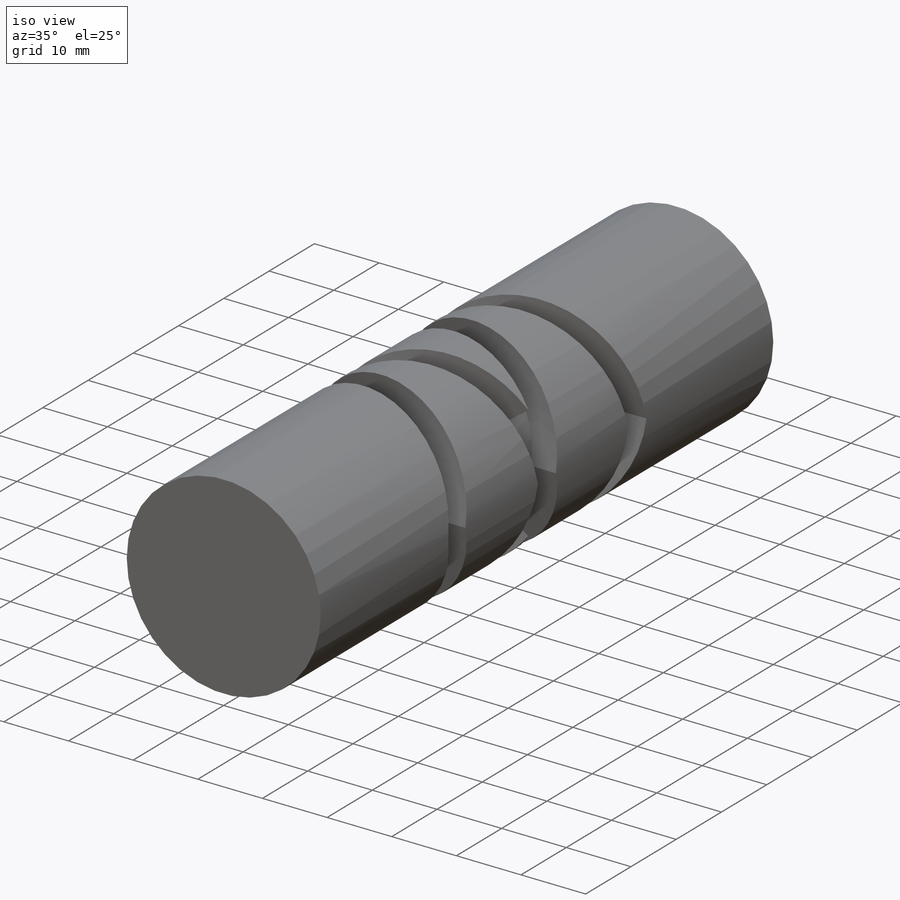
[diagram: iso view]
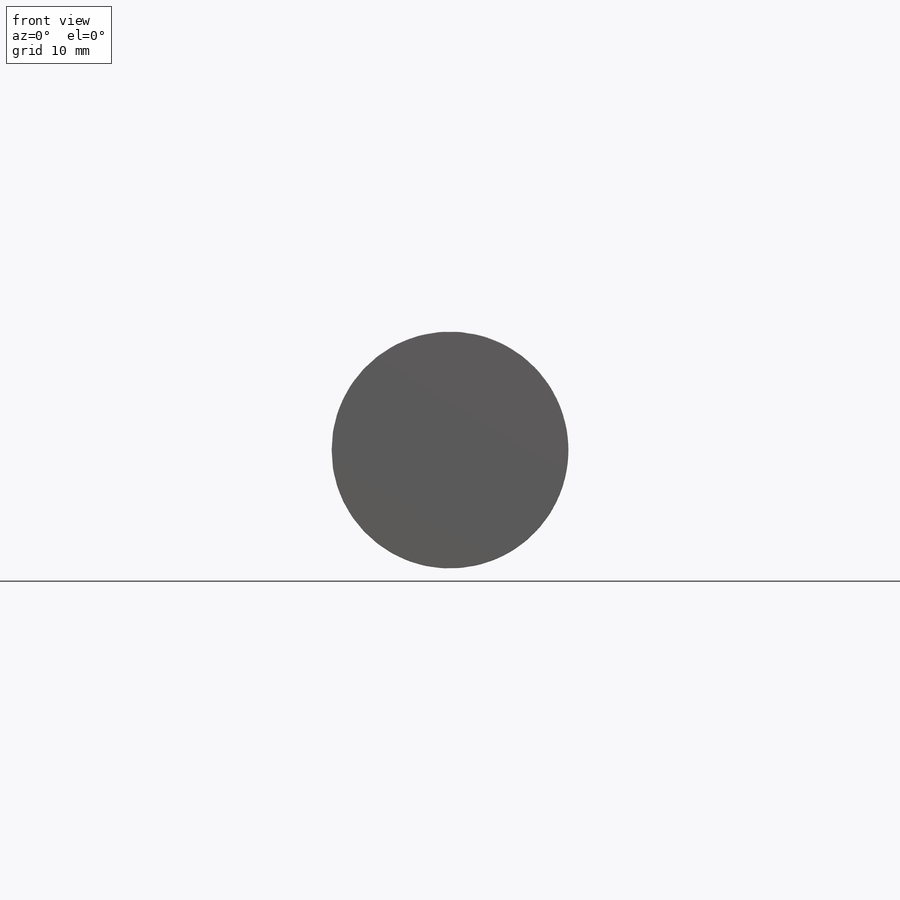
[diagram: front view]
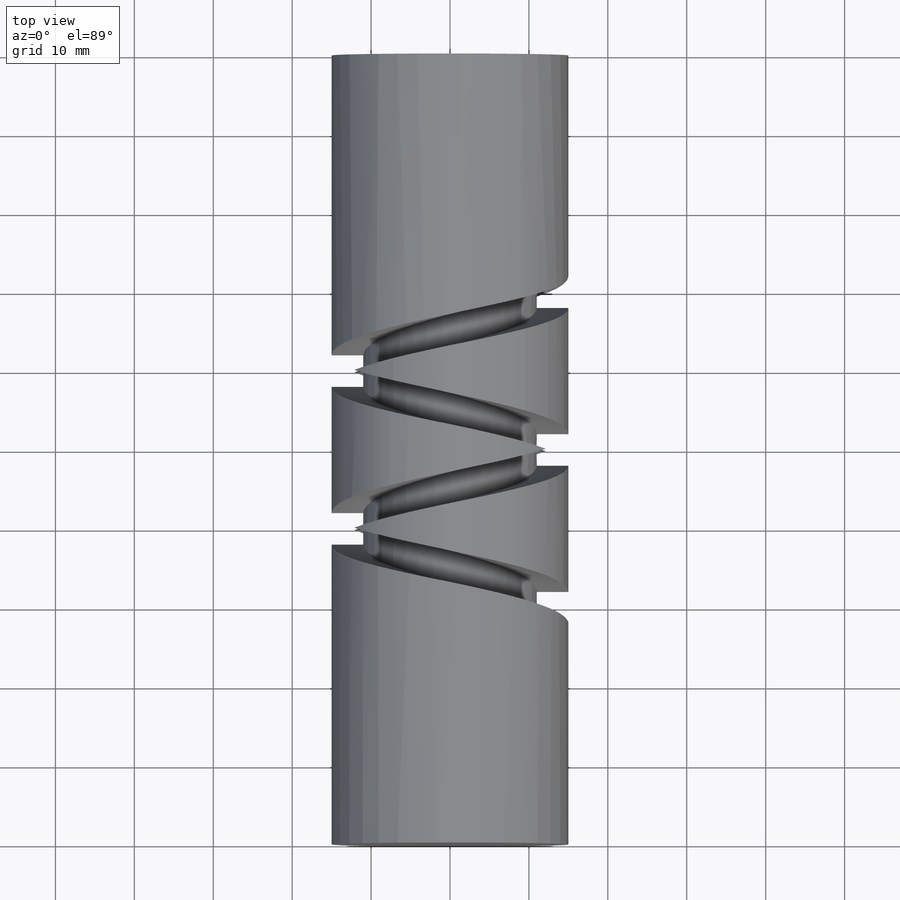
[diagram: top view]
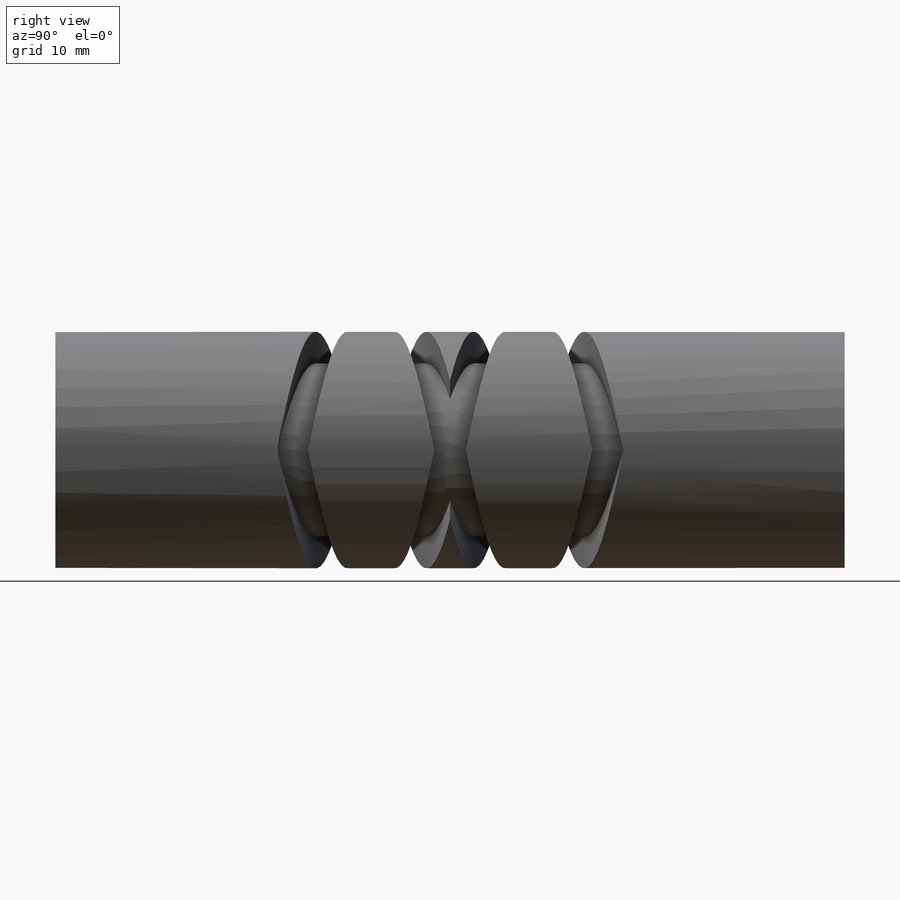
[diagram: right view]
SOLIDWORKS PART (.sldprt)
format: sldprt  version: not decoded by parser v0  size: 312,832 bytes
history: native  units: mm
features: plane x6, sketch x3, material x1, extrude x1, helix x1, sweep x1, mirror x1, fillet x1 (+9 scaffold rows collapsed)
feature tree (24):
  scaffold x9  (default folders/planes/origin — collapsed)
  material  "Material <nicht festgelegt>"
  plane  "Ebene vorne"
  plane  "Ebene oben"
  plane  "Ebene rechts"
  sketch  "Skizze1"  dims[D1=30.0mm]
  extrude  "Aufsatz-Linear austragen1"  Depth=100mm
  plane  "Ebene1"  Offset=0mm
  plane  "Ebene2"  Offset=0mm
  plane  "Ebene3"  Offset=30mm
  sketch  "Skizze4"  dims[D1=30.0mm]
  helix  "Spirale/Helix2"  Pitch=40mm
  sketch  "Skizze6"  dims[c1.D1=4.0mm c1.D2=4.0mm c2.D1=28.0mm c2.D2=4.0mm]
  sweep  "Schnitt-Austragung2"
  mirror  "Spiegeln2"
  fillet  "Verrundung2"  Radius=8mm
decode coverage: 6 of 8 modeling features carry decoded parameters
note: suppression state not decoded; provenance and decode notes live in map.json
